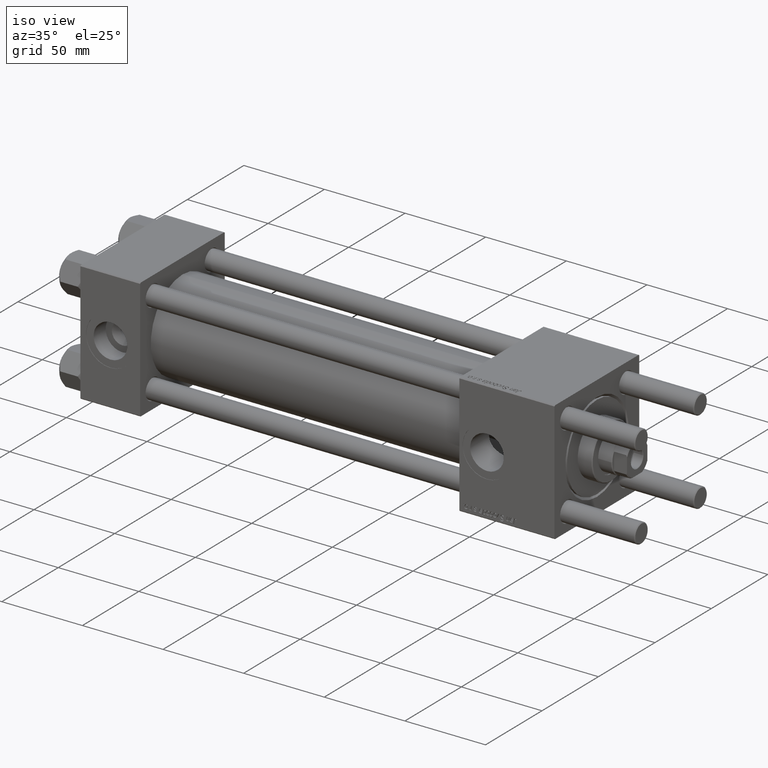
[diagram: clean part render]
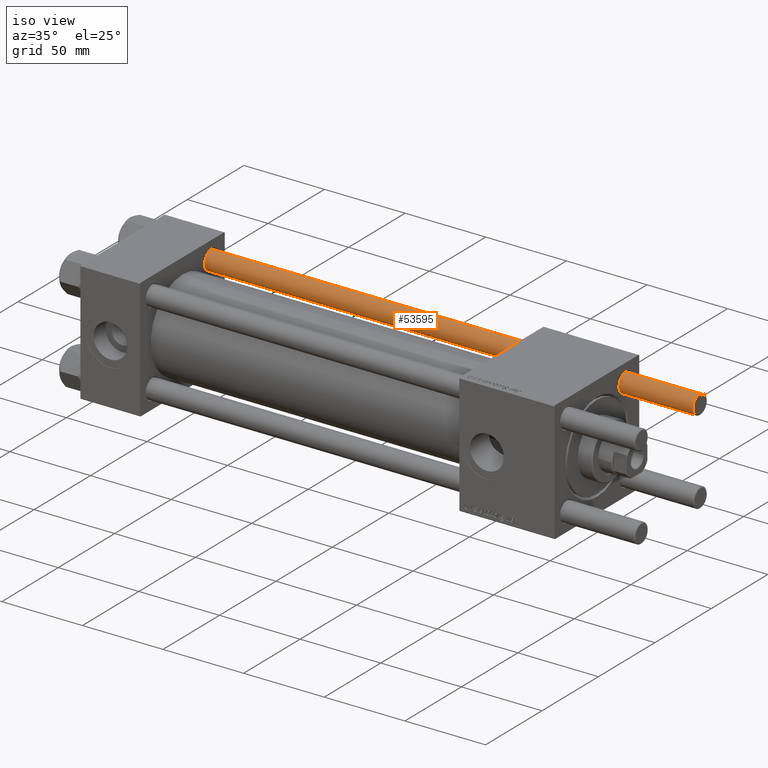
[diagram: same view with one face highlighted and labeled with its STEP entity id]
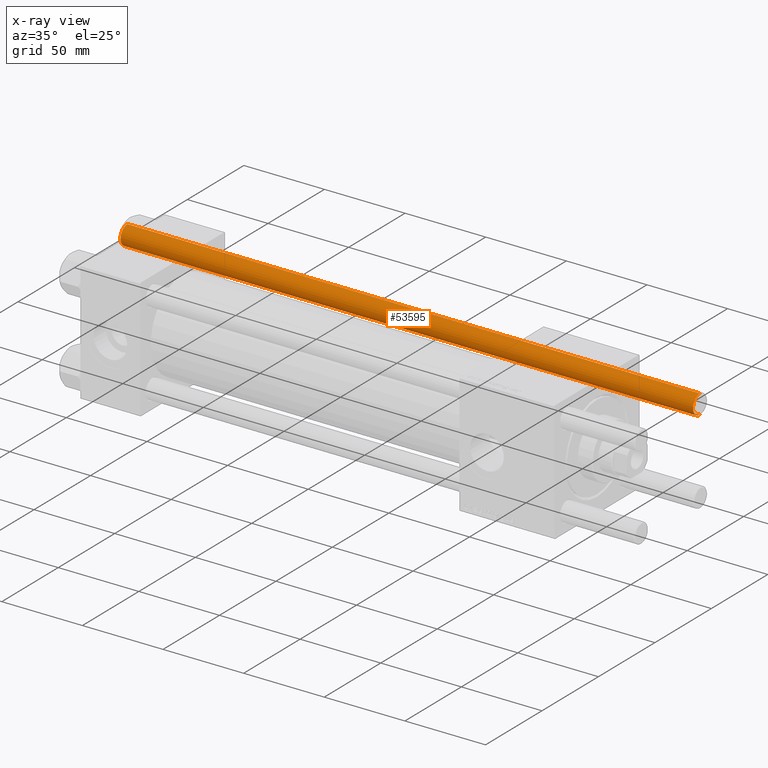
[diagram: x-ray of the same camera — body ghosted, the highlighted face saturated]
A machine part, iso view. The second image highlights one B-rep face of the part: STEP entity #53595.
The next image is the same camera in x-ray: the body ghosted, the highlighted face saturated — about 0% of this face is hidden behind the body in this view.
In plain terms, the highlighted cylindrical surface (edge-blend (fillet) strip) has radius 6 mm, axis along (1, -0, -0).
Its self-contained STEP definition (entity closure, byte-faithful):
#1105 = DIRECTION ( 'NONE',  ( 0.000000000000000000, 0.000000000000000000, -1.000000000000000000 ) ) ;
#2215 = CIRCLE ( 'NONE', #7710, 6.000000000000000888 ) ;
#2884 = EDGE_CURVE ( 'NONE', #44814, #36553, #14937, .T. ) ;
#3141 = VERTEX_POINT ( 'NONE', #34438 ) ;
#3618 = CARTESIAN_POINT ( 'NONE',  ( -6.000000000000000888, 0.000000000000000000, 356.0000000000000000 ) ) ;
#4341 = DIRECTION ( 'NONE',  ( -1.000000000000000000, 0.000000000000000000, 0.000000000000000000 ) ) ;
#5439 = EDGE_CURVE ( 'NONE', #53025, #3141, #11100, .T. ) ;
#5475 = DIRECTION ( 'NONE',  ( -0.000000000000000000, -0.000000000000000000, -1.000000000000000000 ) ) ;
#6431 = ORIENTED_EDGE ( 'NONE', *, *, #12966, .T. ) ;
#7490 = DIRECTION ( 'NONE',  ( -0.000000000000000000, -0.000000000000000000, 1.000000000000000000 ) ) ;
#7710 = AXIS2_PLACEMENT_3D ( 'NONE', #12083, #7490, #29860 ) ;
#8684 = ORIENTED_EDGE ( 'NONE', *, *, #55717, .T. ) ;
#9441 = CARTESIAN_POINT ( 'NONE',  ( 0.000000000000000000, 0.000000000000000000, 355.4999999999999432 ) ) ;
#10140 = AXIS2_PLACEMENT_3D ( 'NONE', #17822, #30727, #4341 ) ;
#11100 = LINE ( 'NONE', #3618, #49688 ) ;
#11851 = CARTESIAN_POINT ( 'NONE',  ( -6.000000000000000888, 0.000000000000000000, 355.4999999999999432 ) ) ;
#12083 = CARTESIAN_POINT ( 'NONE',  ( 0.000000000000000000, 0.000000000000000000, 0.5000000000000559552 ) ) ;
#12966 = EDGE_CURVE ( 'NONE', #3141, #36553, #2215, .T. ) ;
#13903 = CIRCLE ( 'NONE', #35914, 6.000000000000000888 ) ;
#14937 = LINE ( 'NONE', #45375, #30357 ) ;
#17822 = CARTESIAN_POINT ( 'NONE',  ( 0.000000000000000000, 0.000000000000000000, 356.0000000000000000 ) ) ;
#21107 = DIRECTION ( 'NONE',  ( -0.000000000000000000, -0.000000000000000000, -1.000000000000000000 ) ) ;
#29860 = DIRECTION ( 'NONE',  ( 1.000000000000000000, 0.000000000000000000, 0.000000000000000000 ) ) ;
#30171 = DIRECTION ( 'NONE',  ( 1.000000000000000000, 0.000000000000000000, 0.000000000000000000 ) ) ;
#30357 = VECTOR ( 'NONE', #5475, 1000.000000000000000 ) ;
#30727 = DIRECTION ( 'NONE',  ( -0.000000000000000000, -0.000000000000000000, -1.000000000000000000 ) ) ;
#32703 = CARTESIAN_POINT ( 'NONE',  ( 6.000000000000000888, 7.347880794884120722E-16, 355.4999999999999432 ) ) ;
#34215 = FACE_OUTER_BOUND ( 'NONE', #55894, .T. ) ;
#34438 = CARTESIAN_POINT ( 'NONE',  ( -6.000000000000000888, 0.000000000000000000, 0.5000000000000559552 ) ) ;
#35914 = AXIS2_PLACEMENT_3D ( 'NONE', #9441, #1105, #30171 ) ;
#36553 = VERTEX_POINT ( 'NONE', #40766 ) ;
#38037 = ORIENTED_EDGE ( 'NONE', *, *, #2884, .F. ) ;
#38815 = CYLINDRICAL_SURFACE ( 'NONE', #10140, 6.000000000000000888 ) ;
#40766 = CARTESIAN_POINT ( 'NONE',  ( 6.000000000000000888, 7.347880794884120722E-16, 0.5000000000000559552 ) ) ;
#44814 = VERTEX_POINT ( 'NONE', #32703 ) ;
#45375 = CARTESIAN_POINT ( 'NONE',  ( 6.000000000000000888, 7.347880794884120722E-16, 356.0000000000000000 ) ) ;
#49688 = VECTOR ( 'NONE', #21107, 1000.000000000000000 ) ;
#50907 = ORIENTED_EDGE ( 'NONE', *, *, #5439, .T. ) ;
#53025 = VERTEX_POINT ( 'NONE', #11851 ) ;
#53595 = ADVANCED_FACE ( 'NONE', ( #34215 ), #38815, .T. ) ;
#55717 = EDGE_CURVE ( 'NONE', #44814, #53025, #13903, .T. ) ;
#55894 = EDGE_LOOP ( 'NONE', ( #38037, #8684, #50907, #6431 ) ) ;